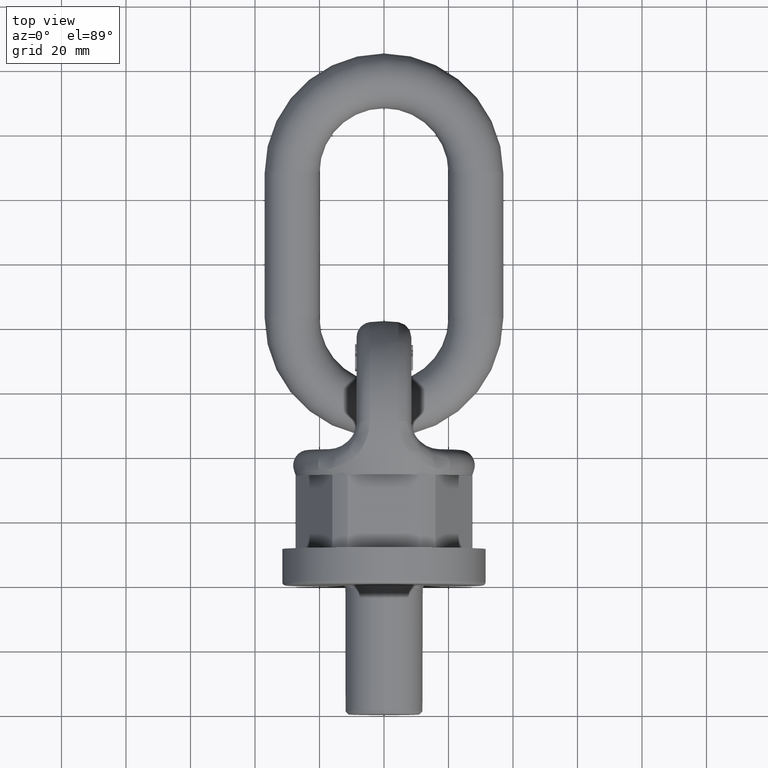
[diagram: clean part render]
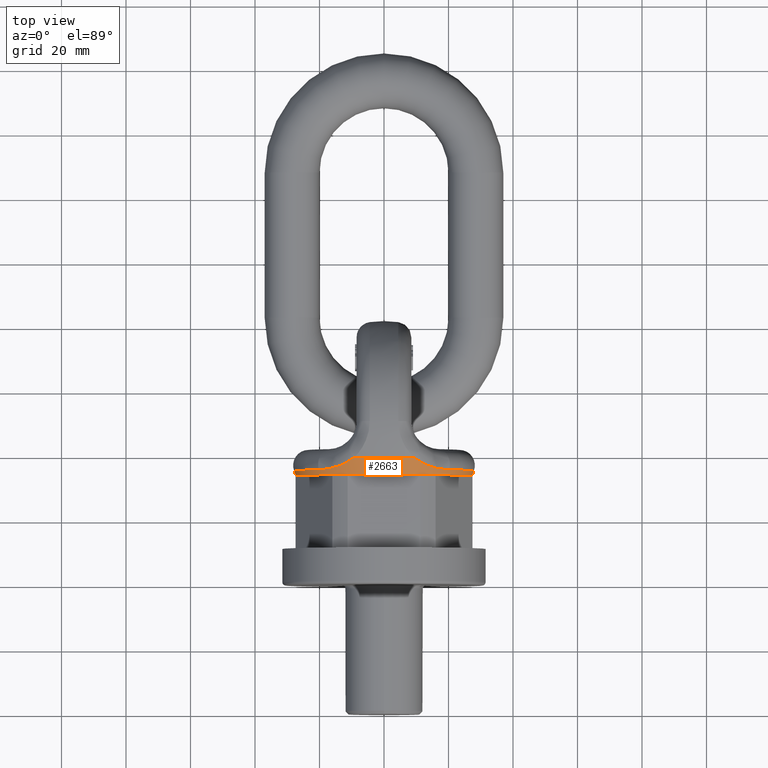
[diagram: same view with one face highlighted and labeled with its STEP entity id]
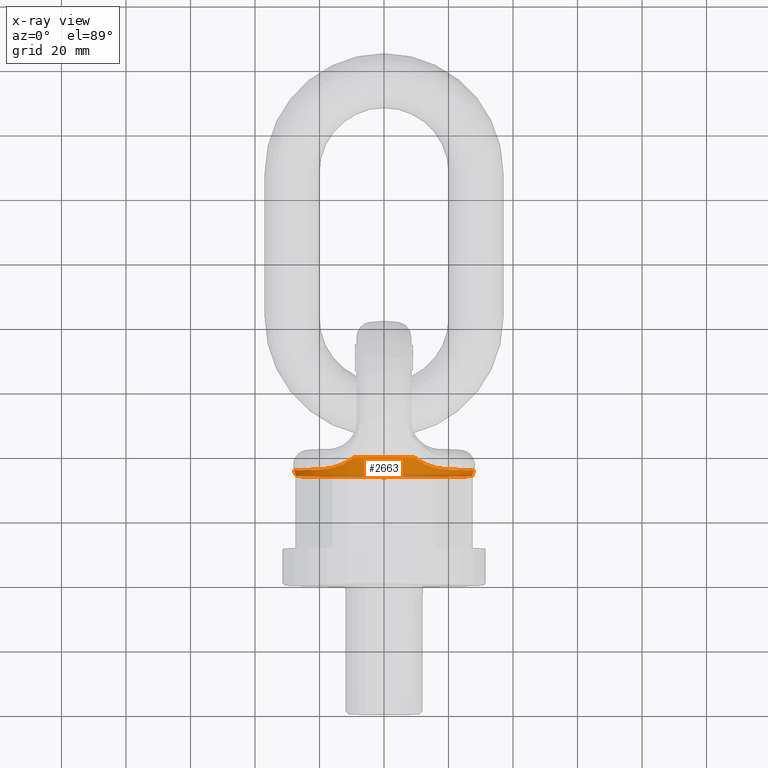
[diagram: x-ray of the same camera — body ghosted, the highlighted face saturated]
A machine part, top view. The second image highlights one B-rep face of the part: STEP entity #2663.
The next image is the same camera in x-ray: the body ghosted, the highlighted face saturated — about 17% of this face is hidden behind the body in this view.
In plain terms, the highlighted conical surface has half-angle 20.84 deg.
Its self-contained STEP definition (entity closure, byte-faithful):
#353=B_SPLINE_CURVE_WITH_KNOTS('',3,(#7050,#7051,#7052,#7053,#7054,#7055),
 .UNSPECIFIED.,.F.,.F.,(4,2,4),(0.,0.5,1.),.UNSPECIFIED.);
#354=B_SPLINE_CURVE_WITH_KNOTS('',3,(#7057,#7058,#7059,#7060,#7061,#7062),
 .UNSPECIFIED.,.F.,.F.,(4,2,4),(0.,0.5,1.),.UNSPECIFIED.);
#355=B_SPLINE_CURVE_WITH_KNOTS('',3,(#7066,#7067,#7068,#7069,#7070,#7071),
 .UNSPECIFIED.,.F.,.F.,(4,2,4),(0.,0.5,1.),.UNSPECIFIED.);
#356=B_SPLINE_CURVE_WITH_KNOTS('',3,(#7072,#7073,#7074,#7075,#7076,#7077),
 .UNSPECIFIED.,.F.,.F.,(4,2,4),(0.,0.5,1.),.UNSPECIFIED.);
#1787=CONICAL_SURFACE('',#5653,27.4241377865072,20.8398480508204);
#2663=ADVANCED_FACE('',(#3008,#3009),#1787,.T.);
#3008=FACE_BOUND('',#3098,.T.);
#3009=FACE_BOUND('',#3099,.T.);
#3098=EDGE_LOOP('',(#3522));
#3099=EDGE_LOOP('',(#3523,#3524,#3525,#3526,#3527,#3528,#3529,#3530));
#3522=ORIENTED_EDGE('',*,*,#5066,.F.);
#3523=ORIENTED_EDGE('',*,*,#5067,.T.);
#3524=ORIENTED_EDGE('',*,*,#5058,.T.);
#3525=ORIENTED_EDGE('',*,*,#5068,.T.);
#3526=ORIENTED_EDGE('',*,*,#5069,.T.);
#3527=ORIENTED_EDGE('',*,*,#5070,.T.);
#3528=ORIENTED_EDGE('',*,*,#5062,.T.);
#3529=ORIENTED_EDGE('',*,*,#5071,.T.);
#3530=ORIENTED_EDGE('',*,*,#5072,.T.);
#4645=VERTEX_POINT('',#7011);
#4646=VERTEX_POINT('',#7012);
#4649=VERTEX_POINT('',#7028);
#4650=VERTEX_POINT('',#7030);
#4653=VERTEX_POINT('',#7048);
#4654=VERTEX_POINT('',#7056);
#4655=VERTEX_POINT('',#7063);
#4656=VERTEX_POINT('',#7065);
#4657=VERTEX_POINT('',#7078);
#5058=EDGE_CURVE('',#4645,#4646,#5553,.T.);
#5062=EDGE_CURVE('',#4650,#4649,#5555,.T.);
#5066=EDGE_CURVE('',#4653,#4653,#5557,.T.);
#5067=EDGE_CURVE('',#4654,#4645,#353,.T.);
#5068=EDGE_CURVE('',#4646,#4655,#354,.T.);
#5069=EDGE_CURVE('',#4655,#4656,#5558,.T.);
#5070=EDGE_CURVE('',#4656,#4650,#355,.T.);
#5071=EDGE_CURVE('',#4649,#4657,#356,.T.);
#5072=EDGE_CURVE('',#4657,#4654,#5559,.T.);
#5553=CIRCLE('',#5644,29.4392221405665);
#5555=CIRCLE('',#5646,29.4392221405665);
#5557=CIRCLE('',#5649,27.4241377865072);
#5558=CIRCLE('',#5651,28.0180266928746);
#5559=CIRCLE('',#5652,28.0180266928746);
#5644=AXIS2_PLACEMENT_3D('',#7010,#5959,#5960);
#5646=AXIS2_PLACEMENT_3D('',#7029,#5963,#5964);
#5649=AXIS2_PLACEMENT_3D('',#7047,#5969,#5970);
#5651=AXIS2_PLACEMENT_3D('',#7064,#5973,#5974);
#5652=AXIS2_PLACEMENT_3D('',#7079,#5975,#5976);
#5653=AXIS2_PLACEMENT_3D('',#7080,#5977,#5978);
#5959=DIRECTION('',(0.,-1.,0.));
#5960=DIRECTION('',(0.,0.,-1.));
#5963=DIRECTION('',(0.,-1.,0.));
#5964=DIRECTION('',(0.,0.,-1.));
#5969=DIRECTION('',(0.,-1.,0.));
#5970=DIRECTION('',(0.,0.,-1.));
#5973=DIRECTION('',(0.,-1.,0.));
#5974=DIRECTION('',(0.,0.,-1.));
#5975=DIRECTION('',(0.,-1.,0.));
#5976=DIRECTION('',(-2.34291072916505E-15,0.,1.));
#5977=DIRECTION('',(0.,1.,0.));
#5978=DIRECTION('',(0.,6.80142771506224E-17,1.));
#7010=CARTESIAN_POINT('',(0.,39.2936535945751,0.));
#7011=CARTESIAN_POINT('',(-9.1621136409193,39.2936535945751,-27.9771956041434));
#7012=CARTESIAN_POINT('',(9.16211364091934,39.2936535945751,-27.9771956041434));
#7028=CARTESIAN_POINT('',(-9.1621136409194,39.2936535945751,27.9771956041434));
#7029=CARTESIAN_POINT('',(0.,39.2936535945751,0.));
#7030=CARTESIAN_POINT('',(9.16211364091937,39.2936535945751,27.9771956041434));
#7047=CARTESIAN_POINT('',(0.,34.,0.));
#7048=CARTESIAN_POINT('',(0.,34.,-27.4241377865072));
#7050=CARTESIAN_POINT('',(-20.2006412461606,35.5601541134677,-19.4150434716627));
#7051=CARTESIAN_POINT('',(-18.4920714300101,35.5601541134677,-21.1927477529046));
#7052=CARTESIAN_POINT('',(-16.6258088280023,35.7922374041076,-22.7856748051443));
#7053=CARTESIAN_POINT('',(-12.8010916397555,36.9704404877006,-25.6349145856959));
#7054=CARTESIAN_POINT('',(-10.8774023319517,37.9064909565845,-26.8598321843595));
#7055=CARTESIAN_POINT('',(-9.1621136409193,39.2936535945751,-27.9771956041434));
#7056=CARTESIAN_POINT('',(-20.2006412461606,35.5601541134677,-19.4150434716627));
#7057=CARTESIAN_POINT('',(9.16211364091934,39.2936535945751,-27.9771956041434));
#7058=CARTESIAN_POINT('',(10.8817572857298,37.9029690834429,-26.8569953056044));
#7059=CARTESIAN_POINT('',(12.8048111282804,36.968170960342,-25.6327730866054));
#7060=CARTESIAN_POINT('',(16.6406384112342,35.7887983428984,-22.7739950421944));
#7061=CARTESIAN_POINT('',(18.4892220054502,35.5601541134677,-21.1957124747388));
#7062=CARTESIAN_POINT('',(20.2006412461606,35.5601541134677,-19.4150434716626));
#7063=CARTESIAN_POINT('',(20.2006412461606,35.5601541134677,-19.4150434716626));
#7064=CARTESIAN_POINT('',(0.,35.5601541134677,0.));
#7065=CARTESIAN_POINT('',(20.2006412461606,35.5601541134677,19.4150434716626));
#7066=CARTESIAN_POINT('',(20.2006412461606,35.5601541134677,19.4150434716626));
#7067=CARTESIAN_POINT('',(18.4920714300102,35.5601541134677,21.1927477529045));
#7068=CARTESIAN_POINT('',(16.6258088280023,35.7922374041076,22.7856748051443));
#7069=CARTESIAN_POINT('',(12.8010916397556,36.9704404877006,25.6349145856959));
#7070=CARTESIAN_POINT('',(10.8774023319517,37.9064909565845,26.8598321843595));
#7071=CARTESIAN_POINT('',(9.16211364091937,39.2936535945751,27.9771956041434));
#7072=CARTESIAN_POINT('',(-9.1621136409194,39.2936535945751,27.9771956041434));
#7073=CARTESIAN_POINT('',(-10.8817572857298,37.9029690834429,26.8569953056044));
#7074=CARTESIAN_POINT('',(-12.8048111282804,36.968170960342,25.6327730866054));
#7075=CARTESIAN_POINT('',(-16.6406384112342,35.7887983428984,22.7739950421944));
#7076=CARTESIAN_POINT('',(-18.4892220054503,35.5601541134677,21.1957124747388));
#7077=CARTESIAN_POINT('',(-20.2006412461606,35.5601541134677,19.4150434716626));
#7078=CARTESIAN_POINT('',(-20.2006412461606,35.5601541134677,19.4150434716626));
#7079=CARTESIAN_POINT('',(0.,35.5601541134677,0.));
#7080=CARTESIAN_POINT('',(0.,34.,0.));